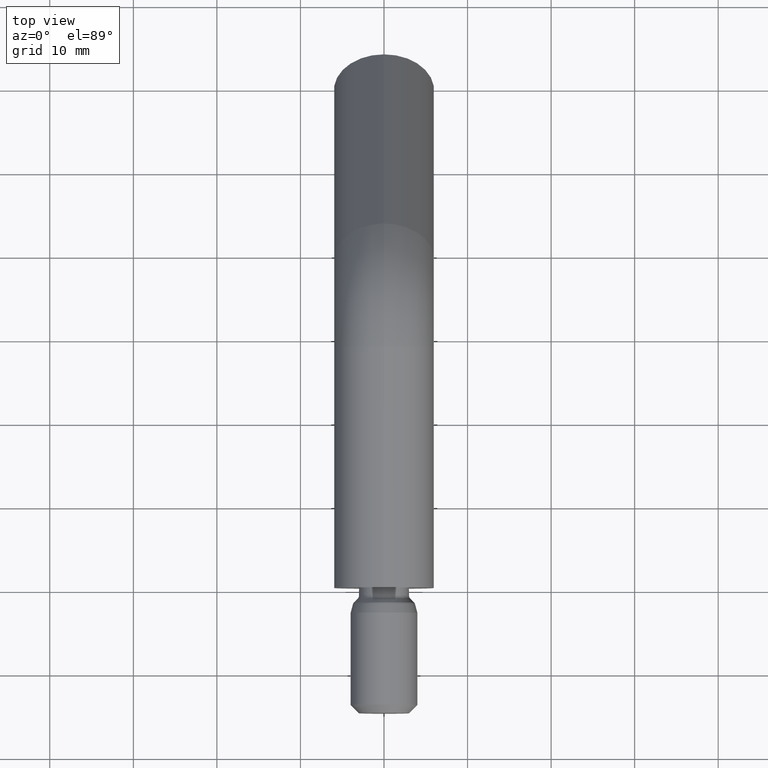
[diagram: clean part render]
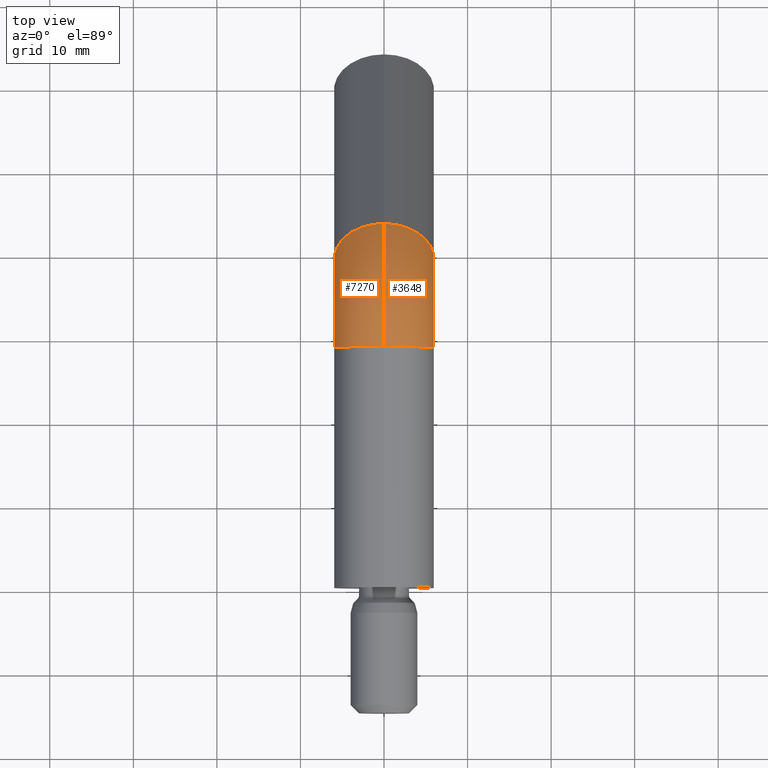
[diagram: same view with one multi-face feature highlighted, each face labeled with its STEP entity id]
A machine part, top view. The highlighted faces form ONE feature: a constant-radius fillet chain: 2 tangent blend faces with common blend radius 6 mm. The faces share edges in the B-rep.
Their STEP definitions:
[1] entity #3648 (Torus):
#288 = DIRECTION ( 'NONE',  ( -1.000000000000000000, -0.0000000000000000000, -0.0000000000000000000 ) ) ;
#329 = ORIENTED_EDGE ( 'NONE', *, *, #5589, .F. ) ;
#564 = DIRECTION ( 'NONE',  ( 0.0000000000000000000, 0.0000000000000000000, 1.000000000000000000 ) ) ;
#686 = CIRCLE ( 'NONE', #12232, 21.00000000000000000 ) ;
#786 = DIRECTION ( 'NONE',  ( 0.0000000000000000000, 1.000000000000000000, 0.0000000000000000000 ) ) ;
#1012 = AXIS2_PLACEMENT_3D ( 'NONE', #9194, #288, #10144 ) ;
#1784 = CARTESIAN_POINT ( 'NONE',  ( 0.0000000000000000000, 43.63603896932117700, -0.1507575950825262900 ) ) ;
#3260 = CARTESIAN_POINT ( 'NONE',  ( 0.0000000000000000000, 28.78679656440364800, -6.000000000000000900 ) ) ;
#3648 = ADVANCED_FACE ( 'NONE', ( #6461 ), #12692, .T. ) ;
#4007 = DIRECTION ( 'NONE',  ( -1.000000000000000000, -0.0000000000000000000, -0.0000000000000000000 ) ) ;
#4019 = ORIENTED_EDGE ( 'NONE', *, *, #4076, .T. ) ;
#4033 = VERTEX_POINT ( 'NONE', #1784 ) ;
#4076 = EDGE_CURVE ( 'NONE', #6282, #7156, #13864, .T. ) ;
#4098 = CARTESIAN_POINT ( 'NONE',  ( 7.347880794884120700E-016, 28.78679656440364800, -15.00000000000000000 ) ) ;
#4152 = DIRECTION ( 'NONE',  ( 0.0000000000000000000, 0.7071067811865463500, -0.7071067811865487900 ) ) ;
#4690 = AXIS2_PLACEMENT_3D ( 'NONE', #4098, #4007, #11904 ) ;
#4860 = CIRCLE ( 'NONE', #4690, 8.999999999999998200 ) ;
#4915 = DIRECTION ( 'NONE',  ( -1.000000000000000000, -0.0000000000000000000, -0.0000000000000000000 ) ) ;
#5589 = EDGE_CURVE ( 'NONE', #4033, #13043, #7451, .T. ) ;
#6028 = AXIS2_PLACEMENT_3D ( 'NONE', #13914, #786, #9641 ) ;
#6282 = VERTEX_POINT ( 'NONE', #9289 ) ;
#6306 = ORIENTED_EDGE ( 'NONE', *, *, #14261, .T. ) ;
#6461 = FACE_OUTER_BOUND ( 'NONE', #13757, .T. ) ;
#6699 = EDGE_CURVE ( 'NONE', #6282, #4033, #686, .T. ) ;
#7156 = VERTEX_POINT ( 'NONE', #3260 ) ;
#7451 = CIRCLE ( 'NONE', #12130, 5.999999999999999100 ) ;
#8423 = CARTESIAN_POINT ( 'NONE',  ( 0.0000000000000000000, 39.39339828220188600, -4.393398282201803600 ) ) ;
#9194 = CARTESIAN_POINT ( 'NONE',  ( 0.0000000000000000000, 28.78679656440364800, -15.00000000000000000 ) ) ;
#9289 = CARTESIAN_POINT ( 'NONE',  ( 7.347880794884120700E-016, 28.78679656440364800, 6.000000000000000900 ) ) ;
#9532 = DIRECTION ( 'NONE',  ( 0.0000000000000000000, 0.7071067811865485700, 0.7071067811865465700 ) ) ;
#9641 = DIRECTION ( 'NONE',  ( 0.0000000000000000000, 0.0000000000000000000, 1.000000000000000000 ) ) ;
#9962 = CARTESIAN_POINT ( 'NONE',  ( 7.347880794884120700E-016, 35.15075759508259500, -8.636038969321081300 ) ) ;
#10144 = DIRECTION ( 'NONE',  ( 0.0000000000000000000, 0.0000000000000000000, 1.000000000000000000 ) ) ;
#10383 = ORIENTED_EDGE ( 'NONE', *, *, #6699, .F. ) ;
#11904 = DIRECTION ( 'NONE',  ( 0.0000000000000000000, 0.0000000000000000000, 1.000000000000000000 ) ) ;
#12130 = AXIS2_PLACEMENT_3D ( 'NONE', #8423, #4152, #9532 ) ;
#12232 = AXIS2_PLACEMENT_3D ( 'NONE', #13692, #4915, #564 ) ;
#12692 = TOROIDAL_SURFACE ( 'NONE', #1012, 15.00000000000000000, 6.000000000000000900 ) ;
#13043 = VERTEX_POINT ( 'NONE', #9962 ) ;
#13692 = CARTESIAN_POINT ( 'NONE',  ( 0.0000000000000000000, 28.78679656440364800, -15.00000000000000000 ) ) ;
#13757 = EDGE_LOOP ( 'NONE', ( #10383, #4019, #6306, #329 ) ) ;
#13864 = CIRCLE ( 'NONE', #6028, 6.000000000000000900 ) ;
#13914 = CARTESIAN_POINT ( 'NONE',  ( 0.0000000000000000000, 28.78679656440364800, 0.0000000000000000000 ) ) ;
#14261 = EDGE_CURVE ( 'NONE', #7156, #13043, #4860, .T. ) ;
[2] entity #7270 (Torus):
#381 = ORIENTED_EDGE ( 'NONE', *, *, #6699, .T. ) ;
#388 = EDGE_CURVE ( 'NONE', #7156, #6282, #13741, .T. ) ;
#564 = DIRECTION ( 'NONE',  ( 0.0000000000000000000, 0.0000000000000000000, 1.000000000000000000 ) ) ;
#686 = CIRCLE ( 'NONE', #12232, 21.00000000000000000 ) ;
#1784 = CARTESIAN_POINT ( 'NONE',  ( 0.0000000000000000000, 43.63603896932117700, -0.1507575950825262900 ) ) ;
#1909 = EDGE_LOOP ( 'NONE', ( #14204, #381, #9474, #9147 ) ) ;
#2393 = FACE_OUTER_BOUND ( 'NONE', #1909, .T. ) ;
#3090 = DIRECTION ( 'NONE',  ( 0.0000000000000000000, 0.0000000000000000000, 1.000000000000000000 ) ) ;
#3260 = CARTESIAN_POINT ( 'NONE',  ( 0.0000000000000000000, 28.78679656440364800, -6.000000000000000900 ) ) ;
#3561 = DIRECTION ( 'NONE',  ( -1.000000000000000000, -0.0000000000000000000, -0.0000000000000000000 ) ) ;
#4007 = DIRECTION ( 'NONE',  ( -1.000000000000000000, -0.0000000000000000000, -0.0000000000000000000 ) ) ;
#4033 = VERTEX_POINT ( 'NONE', #1784 ) ;
#4098 = CARTESIAN_POINT ( 'NONE',  ( 7.347880794884120700E-016, 28.78679656440364800, -15.00000000000000000 ) ) ;
#4690 = AXIS2_PLACEMENT_3D ( 'NONE', #4098, #4007, #11904 ) ;
#4860 = CIRCLE ( 'NONE', #4690, 8.999999999999998200 ) ;
#4915 = DIRECTION ( 'NONE',  ( -1.000000000000000000, -0.0000000000000000000, -0.0000000000000000000 ) ) ;
#5601 = CIRCLE ( 'NONE', #6250, 5.999999999999999100 ) ;
#6250 = AXIS2_PLACEMENT_3D ( 'NONE', #10665, #12049, #13175 ) ;
#6282 = VERTEX_POINT ( 'NONE', #9289 ) ;
#6699 = EDGE_CURVE ( 'NONE', #6282, #4033, #686, .T. ) ;
#7156 = VERTEX_POINT ( 'NONE', #3260 ) ;
#7270 = ADVANCED_FACE ( 'NONE', ( #2393 ), #14298, .T. ) ;
#7527 = AXIS2_PLACEMENT_3D ( 'NONE', #11243, #3561, #9190 ) ;
#9147 = ORIENTED_EDGE ( 'NONE', *, *, #14261, .F. ) ;
#9190 = DIRECTION ( 'NONE',  ( 0.0000000000000000000, 0.0000000000000000000, 1.000000000000000000 ) ) ;
#9289 = CARTESIAN_POINT ( 'NONE',  ( 7.347880794884120700E-016, 28.78679656440364800, 6.000000000000000900 ) ) ;
#9474 = ORIENTED_EDGE ( 'NONE', *, *, #10989, .F. ) ;
#9962 = CARTESIAN_POINT ( 'NONE',  ( 7.347880794884120700E-016, 35.15075759508259500, -8.636038969321081300 ) ) ;
#10665 = CARTESIAN_POINT ( 'NONE',  ( 0.0000000000000000000, 39.39339828220188600, -4.393398282201803600 ) ) ;
#10756 = DIRECTION ( 'NONE',  ( 0.0000000000000000000, 1.000000000000000000, 0.0000000000000000000 ) ) ;
#10989 = EDGE_CURVE ( 'NONE', #13043, #4033, #5601, .T. ) ;
#11183 = AXIS2_PLACEMENT_3D ( 'NONE', #14100, #10756, #3090 ) ;
#11243 = CARTESIAN_POINT ( 'NONE',  ( 0.0000000000000000000, 28.78679656440364800, -15.00000000000000000 ) ) ;
#11904 = DIRECTION ( 'NONE',  ( 0.0000000000000000000, 0.0000000000000000000, 1.000000000000000000 ) ) ;
#12049 = DIRECTION ( 'NONE',  ( 0.0000000000000000000, 0.7071067811865463500, -0.7071067811865487900 ) ) ;
#12232 = AXIS2_PLACEMENT_3D ( 'NONE', #13692, #4915, #564 ) ;
#13043 = VERTEX_POINT ( 'NONE', #9962 ) ;
#13175 = DIRECTION ( 'NONE',  ( 0.0000000000000000000, 0.7071067811865485700, 0.7071067811865465700 ) ) ;
#13692 = CARTESIAN_POINT ( 'NONE',  ( 0.0000000000000000000, 28.78679656440364800, -15.00000000000000000 ) ) ;
#13741 = CIRCLE ( 'NONE', #11183, 6.000000000000000900 ) ;
#14100 = CARTESIAN_POINT ( 'NONE',  ( 0.0000000000000000000, 28.78679656440364800, 0.0000000000000000000 ) ) ;
#14204 = ORIENTED_EDGE ( 'NONE', *, *, #388, .T. ) ;
#14261 = EDGE_CURVE ( 'NONE', #7156, #13043, #4860, .T. ) ;
#14298 = TOROIDAL_SURFACE ( 'NONE', #7527, 15.00000000000000000, 6.000000000000000900 ) ;